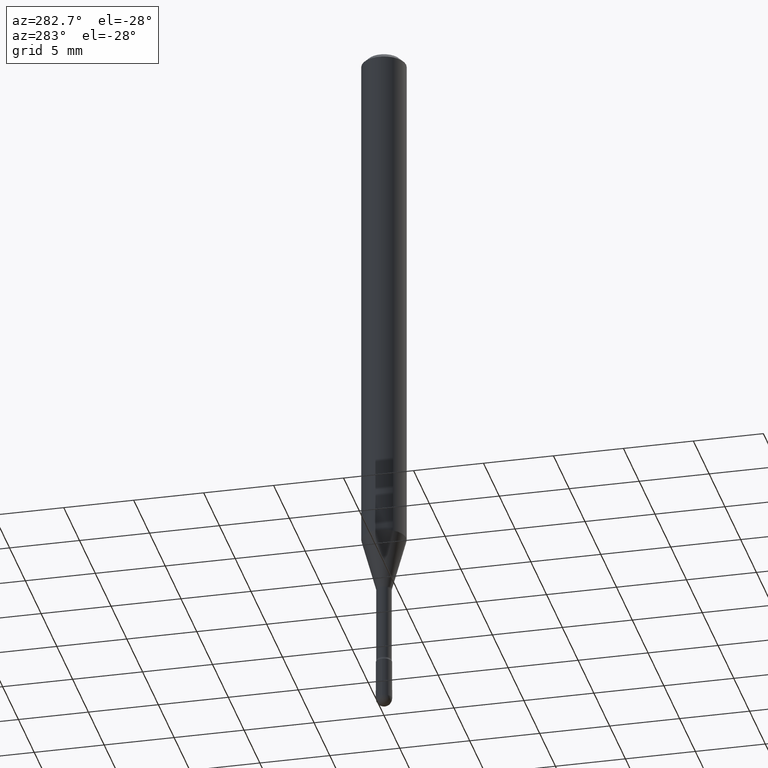
[diagram: clean part render]
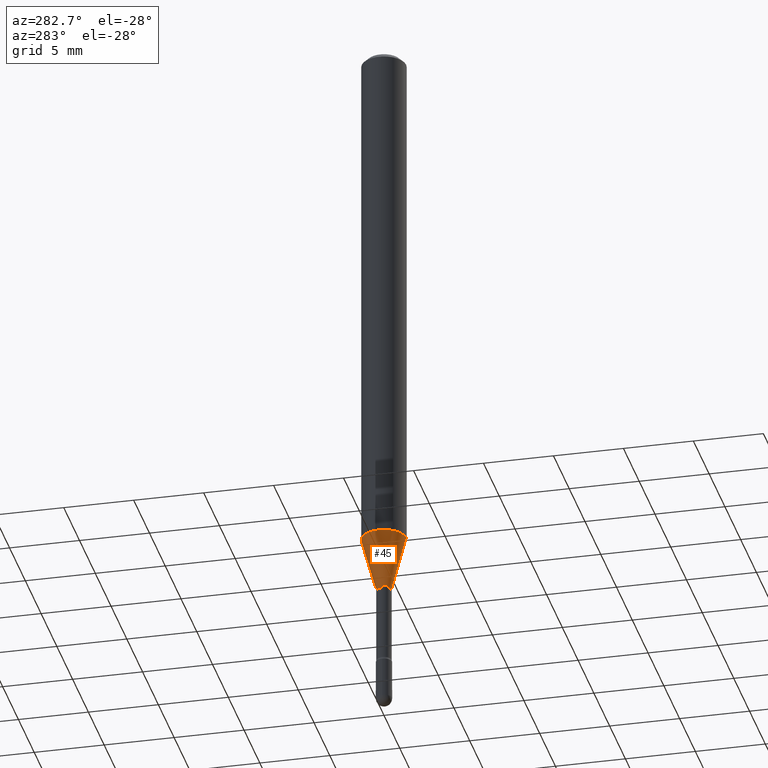
[diagram: same view with one face highlighted and labeled with its STEP entity id]
A machine part, auxiliary view. The second image highlights one B-rep face of the part: STEP entity #45.
In plain terms, the highlighted conical surface has half-angle 15 deg.
Its self-contained STEP definition (entity closure, byte-faithful):
#21 = EDGE_LOOP ( 'NONE', ( #277, #61, #71, #522 ) ) ;
#40 = AXIS2_PLACEMENT_3D ( 'NONE', #313, #396, #482 ) ;
#45 = ADVANCED_FACE ( 'NONE', ( #136 ), #449, .T. ) ;
#50 = CIRCLE ( 'NONE', #437, 0.02166111260566391111 ) ;
#61 = ORIENTED_EDGE ( 'NONE', *, *, #294, .T. ) ;
#71 = ORIENTED_EDGE ( 'NONE', *, *, #327, .T. ) ;
#94 = DIRECTION ( 'NONE',  ( -6.982962677686265922E-15, -1.000000000000000000, 0.000000000000000000 ) ) ;
#121 = EDGE_CURVE ( 'NONE', #244, #216, #209, .T. ) ;
#122 = CARTESIAN_POINT ( 'NONE',  ( -4.364351673553553818E-16, -0.06250000000000520417, -1.485679699107026686 ) ) ;
#123 = VERTEX_POINT ( 'NONE', #183 ) ;
#136 = FACE_OUTER_BOUND ( 'NONE', #21, .T. ) ;
#150 = LINE ( 'NONE', #366, #375 ) ;
#178 = VECTOR ( 'NONE', #185, 39.37007874015748854 ) ;
#183 = CARTESIAN_POINT ( 'NONE',  ( 2.990003359772496319E-16, 0.02166111260565818999, -1.638092501787273614 ) ) ;
#185 = DIRECTION ( 'NONE',  ( -1.807323732225322645E-15, -0.2588190451025171313, 0.9659258262890693114 ) ) ;
#209 = CIRCLE ( 'NONE', #476, 0.06250000000000000000 ) ;
#216 = VERTEX_POINT ( 'NONE', #122 ) ;
#244 = VERTEX_POINT ( 'NONE', #377 ) ;
#275 = DIRECTION ( 'NONE',  ( -2.445440132867117346E-29, 3.491522400666532980E-15, 1.000000000000000000 ) ) ;
#277 = ORIENTED_EDGE ( 'NONE', *, *, #351, .F. ) ;
#294 = EDGE_CURVE ( 'NONE', #123, #378, #50, .T. ) ;
#313 = CARTESIAN_POINT ( 'NONE',  ( 4.005857145219299164E-29, -5.719436664354149632E-15, -1.638092501787273614 ) ) ;
#316 = DIRECTION ( 'NONE',  ( 1.839019923739592821E-15, 0.2588190451025239036, 0.9659258262890675351 ) ) ;
#322 = CARTESIAN_POINT ( 'NONE',  ( -1.512587408824705389E-16, -0.02166111260566962876, -1.638092501787273614 ) ) ;
#327 = EDGE_CURVE ( 'NONE', #378, #216, #409, .T. ) ;
#351 = EDGE_CURVE ( 'NONE', #123, #244, #150, .T. ) ;
#355 = DIRECTION ( 'NONE',  ( -2.445440132867117346E-29, 3.491522400666532980E-15, 1.000000000000000000 ) ) ;
#366 = CARTESIAN_POINT ( 'NONE',  ( 1.539114621044003108E-16, 0.02166111260565818999, -1.638092501787273614 ) ) ;
#375 = VECTOR ( 'NONE', #316, 39.37007874015748854 ) ;
#377 = CARTESIAN_POINT ( 'NONE',  ( 4.440892098500987066E-16, 0.06249999999999478889, -1.485679699107027352 ) ) ;
#378 = VERTEX_POINT ( 'NONE', #322 ) ;
#396 = DIRECTION ( 'NONE',  ( -2.445440132867117346E-29, 3.491522400666532980E-15, 1.000000000000000000 ) ) ;
#407 = CARTESIAN_POINT ( 'NONE',  ( -1.512587408824705389E-16, -0.02166111260566962876, -1.638092501787273614 ) ) ;
#409 = LINE ( 'NONE', #407, #178 ) ;
#437 = AXIS2_PLACEMENT_3D ( 'NONE', #439, #355, #94 ) ;
#439 = CARTESIAN_POINT ( 'NONE',  ( 4.005857145219299164E-29, -5.719436664354149632E-15, -1.638092501787273614 ) ) ;
#446 = DIRECTION ( 'NONE',  ( -6.982962677686265922E-15, -1.000000000000000000, 4.370956789862821150E-15 ) ) ;
#449 = CONICAL_SURFACE ( 'NONE', #40, 0.02166111260566391111, 0.2617993877991491858 ) ;
#476 = AXIS2_PLACEMENT_3D ( 'NONE', #535, #275, #446 ) ;
#482 = DIRECTION ( 'NONE',  ( -6.982962677686265922E-15, -1.000000000000000000, 0.000000000000000000 ) ) ;
#522 = ORIENTED_EDGE ( 'NONE', *, *, #121, .F. ) ;
#535 = CARTESIAN_POINT ( 'NONE',  ( 3.633140760782267063E-29, -5.187283949647700469E-15, -1.485679699107027130 ) ) ;